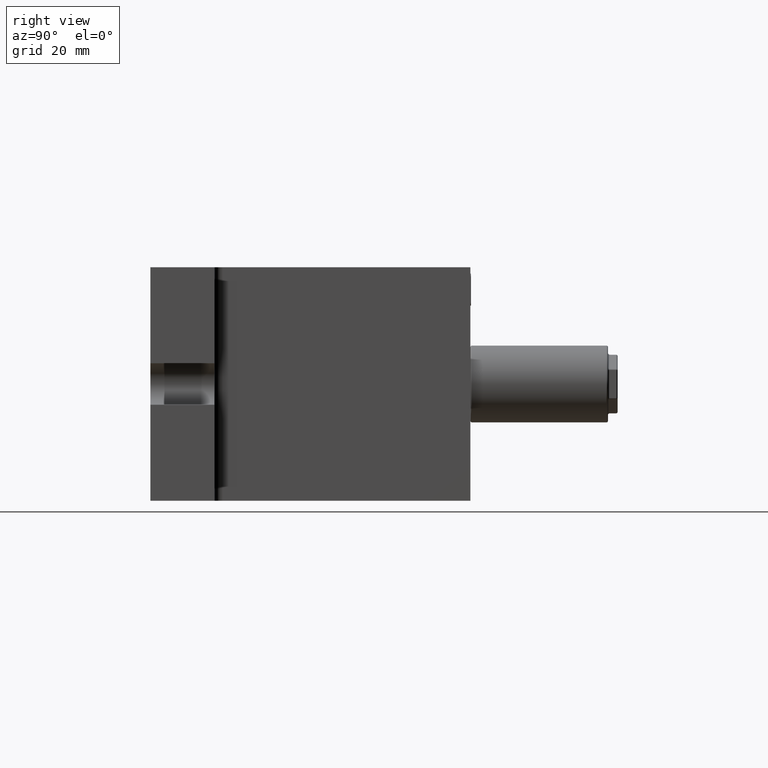
[diagram: clean part render]
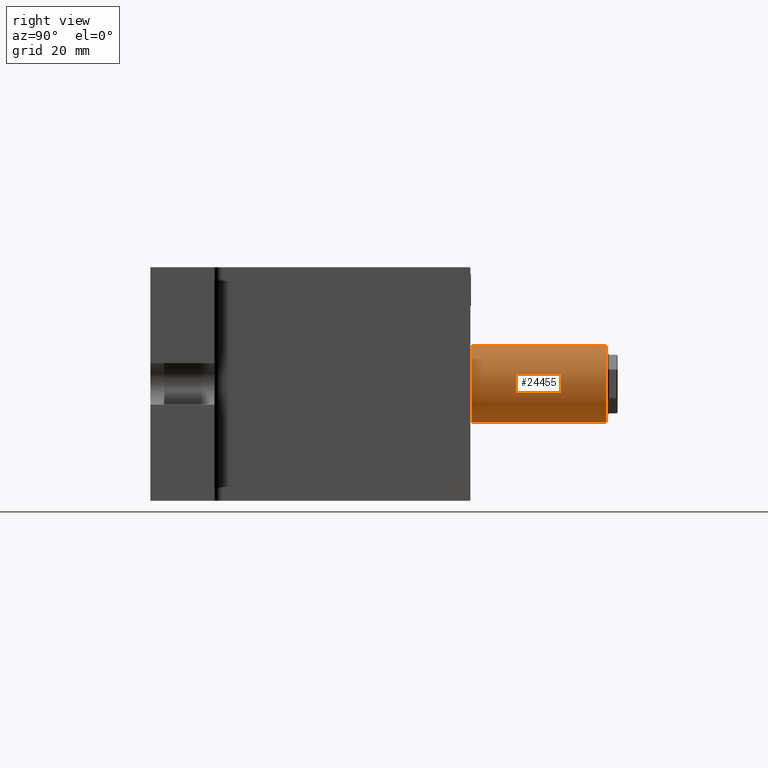
[diagram: same view with one face highlighted and labeled with its STEP entity id]
A machine part, right view. The second image highlights one B-rep face of the part: STEP entity #24455.
In plain terms, the highlighted cylindrical surface (partial cylindrical patch) has radius 12 mm, axis along (0, -1, 0).
Its self-contained STEP definition (entity closure, byte-faithful):
#50 = ORIENTED_EDGE ( 'NONE', *, *, #9661, .T. ) ;
#62 = LINE ( 'NONE', #4436, #14949 ) ;
#83 = DIRECTION ( 'NONE',  ( 0.0000000000000000000, 0.0000000000000000000, 1.000000000000000000 ) ) ;
#1171 = DIRECTION ( 'NONE',  ( -0.0000000000000000000, 1.000000000000000000, -0.0000000000000000000 ) ) ;
#1856 = LINE ( 'NONE', #19194, #5765 ) ;
#2095 = DIRECTION ( 'NONE',  ( 0.0000000000000000000, -1.000000000000000000, 0.0000000000000000000 ) ) ;
#2116 = LINE ( 'NONE', #17479, #9139 ) ;
#2188 = DIRECTION ( 'NONE',  ( 0.0000000000000000000, -1.000000000000000000, 0.0000000000000000000 ) ) ;
#2189 = VERTEX_POINT ( 'NONE', #24588 ) ;
#2353 = EDGE_LOOP ( 'NONE', ( #14680, #6802, #11152, #7181, #13362, #13144, #3193, #4689, #7302, #17540, #4361, #50, #24050, #16234, #4878, #3065, #18163, #11641, #4203, #24303 ) ) ;
#2665 = DIRECTION ( 'NONE',  ( 0.0000000000000000000, 1.000000000000000000, 0.0000000000000000000 ) ) ;
#3065 = ORIENTED_EDGE ( 'NONE', *, *, #16893, .F. ) ;
#3145 = VECTOR ( 'NONE', #8468, 1000.000000000000000 ) ;
#3157 = CARTESIAN_POINT ( 'NONE',  ( 34.00000000000000000, 76.00000000000000000, -12.00000000000000000 ) ) ;
#3193 = ORIENTED_EDGE ( 'NONE', *, *, #17089, .T. ) ;
#3258 = CIRCLE ( 'NONE', #7011, 12.00000000000000000 ) ;
#3421 = CARTESIAN_POINT ( 'NONE',  ( 34.00000000000000000, 93.00000000000000000, 12.00000000000000000 ) ) ;
#3510 = CARTESIAN_POINT ( 'NONE',  ( 34.00000000000000000, 60.00000000000000000, 12.00000000000000000 ) ) ;
#3916 = LINE ( 'NONE', #16996, #11830 ) ;
#3935 = CARTESIAN_POINT ( 'NONE',  ( 34.00000000000000000, 93.00000000000000000, -12.00000000000000000 ) ) ;
#4203 = ORIENTED_EDGE ( 'NONE', *, *, #15593, .F. ) ;
#4329 = EDGE_CURVE ( 'NONE', #17580, #7842, #14251, .T. ) ;
#4361 = ORIENTED_EDGE ( 'NONE', *, *, #4329, .T. ) ;
#4436 = CARTESIAN_POINT ( 'NONE',  ( 34.00000000000000000, 93.00000000000000000, 12.00000000000000000 ) ) ;
#4490 = VECTOR ( 'NONE', #9706, 1000.000000000000000 ) ;
#4586 = CARTESIAN_POINT ( 'NONE',  ( 34.00000000000000000, 66.00000000000000000, 12.00000000000000000 ) ) ;
#4689 = ORIENTED_EDGE ( 'NONE', *, *, #21093, .F. ) ;
#4739 = LINE ( 'NONE', #15799, #18954 ) ;
#4878 = ORIENTED_EDGE ( 'NONE', *, *, #17048, .F. ) ;
#5124 = EDGE_CURVE ( 'NONE', #24989, #6602, #22640, .T. ) ;
#5257 = VECTOR ( 'NONE', #21668, 1000.000000000000000 ) ;
#5303 = LINE ( 'NONE', #5662, #8018 ) ;
#5545 = LINE ( 'NONE', #8359, #7661 ) ;
#5662 = CARTESIAN_POINT ( 'NONE',  ( 34.00000000000000000, 93.00000000000000000, 12.00000000000000000 ) ) ;
#5765 = VECTOR ( 'NONE', #7635, 1000.000000000000000 ) ;
#6344 = CARTESIAN_POINT ( 'NONE',  ( 34.00000000000000000, 74.00000000000000000, 12.00000000000000000 ) ) ;
#6602 = VERTEX_POINT ( 'NONE', #14809 ) ;
#6650 = CARTESIAN_POINT ( 'NONE',  ( 34.00000000000000000, 50.50000000000000000, 0.0000000000000000000 ) ) ;
#6802 = ORIENTED_EDGE ( 'NONE', *, *, #21374, .T. ) ;
#7011 = AXIS2_PLACEMENT_3D ( 'NONE', #6650, #2665, #8877 ) ;
#7181 = ORIENTED_EDGE ( 'NONE', *, *, #17238, .F. ) ;
#7302 = ORIENTED_EDGE ( 'NONE', *, *, #8054, .T. ) ;
#7635 = DIRECTION ( 'NONE',  ( 0.0000000000000000000, -1.000000000000000000, 0.0000000000000000000 ) ) ;
#7661 = VECTOR ( 'NONE', #10426, 1000.000000000000000 ) ;
#7674 = CARTESIAN_POINT ( 'NONE',  ( 34.00000000000000000, 93.00000000000000000, -12.00000000000000000 ) ) ;
#7842 = VERTEX_POINT ( 'NONE', #18639 ) ;
#8018 = VECTOR ( 'NONE', #17157, 1000.000000000000000 ) ;
#8054 = EDGE_CURVE ( 'NONE', #14119, #9438, #13713, .T. ) ;
#8157 = VECTOR ( 'NONE', #8465, 1000.000000000000000 ) ;
#8359 = CARTESIAN_POINT ( 'NONE',  ( 34.00000000000000000, 93.00000000000000000, -12.00000000000000000 ) ) ;
#8465 = DIRECTION ( 'NONE',  ( 0.0000000000000000000, -1.000000000000000000, 0.0000000000000000000 ) ) ;
#8468 = DIRECTION ( 'NONE',  ( -0.0000000000000000000, 1.000000000000000000, -0.0000000000000000000 ) ) ;
#8877 = DIRECTION ( 'NONE',  ( 0.0000000000000000000, 0.0000000000000000000, -1.000000000000000000 ) ) ;
#8880 = VECTOR ( 'NONE', #19376, 1000.000000000000000 ) ;
#9139 = VECTOR ( 'NONE', #24990, 1000.000000000000000 ) ;
#9178 = DIRECTION ( 'NONE',  ( 0.0000000000000000000, -1.000000000000000000, 0.0000000000000000000 ) ) ;
#9272 = CARTESIAN_POINT ( 'NONE',  ( 34.00000000000000000, 66.00000000000000000, -12.00000000000000000 ) ) ;
#9438 = VERTEX_POINT ( 'NONE', #3510 ) ;
#9576 = AXIS2_PLACEMENT_3D ( 'NONE', #11151, #24607, #16924 ) ;
#9661 = EDGE_CURVE ( 'NONE', #7842, #22721, #3258, .T. ) ;
#9706 = DIRECTION ( 'NONE',  ( 0.0000000000000000000, -1.000000000000000000, 0.0000000000000000000 ) ) ;
#10184 = VERTEX_POINT ( 'NONE', #24757 ) ;
#10389 = DIRECTION ( 'NONE',  ( 0.0000000000000000000, -1.000000000000000000, 0.0000000000000000000 ) ) ;
#10426 = DIRECTION ( 'NONE',  ( 0.0000000000000000000, -1.000000000000000000, 0.0000000000000000000 ) ) ;
#10634 = VERTEX_POINT ( 'NONE', #20281 ) ;
#10877 = CARTESIAN_POINT ( 'NONE',  ( 34.00000000000000000, 84.00000000000000000, 12.00000000000000000 ) ) ;
#11151 = CARTESIAN_POINT ( 'NONE',  ( 34.00000000000000000, 92.50000000000000000, 0.0000000000000000000 ) ) ;
#11152 = ORIENTED_EDGE ( 'NONE', *, *, #24685, .T. ) ;
#11222 = CARTESIAN_POINT ( 'NONE',  ( 34.00000000000000000, 76.00000000000000000, 12.00000000000000000 ) ) ;
#11237 = VECTOR ( 'NONE', #1171, 1000.000000000000000 ) ;
#11473 = VECTOR ( 'NONE', #18989, 1000.000000000000000 ) ;
#11641 = ORIENTED_EDGE ( 'NONE', *, *, #16966, .F. ) ;
#11830 = VECTOR ( 'NONE', #9178, 1000.000000000000000 ) ;
#12024 = CARTESIAN_POINT ( 'NONE',  ( 34.00000000000000000, 93.00000000000000000, 12.00000000000000000 ) ) ;
#12240 = DIRECTION ( 'NONE',  ( -0.0000000000000000000, 1.000000000000000000, -0.0000000000000000000 ) ) ;
#12808 = EDGE_CURVE ( 'NONE', #21085, #15006, #62, .T. ) ;
#13118 = LINE ( 'NONE', #3421, #22790 ) ;
#13138 = CIRCLE ( 'NONE', #9576, 12.00000000000000000 ) ;
#13144 = ORIENTED_EDGE ( 'NONE', *, *, #12808, .F. ) ;
#13362 = ORIENTED_EDGE ( 'NONE', *, *, #16294, .T. ) ;
#13595 = CARTESIAN_POINT ( 'NONE',  ( 34.00000000000000000, 93.00000000000000000, 12.00000000000000000 ) ) ;
#13596 = CARTESIAN_POINT ( 'NONE',  ( 34.00000000000000000, 60.00000000000000000, -12.00000000000000000 ) ) ;
#13713 = LINE ( 'NONE', #12024, #24572 ) ;
#14105 = CARTESIAN_POINT ( 'NONE',  ( 34.00000000000000000, 74.00000000000000000, -12.00000000000000000 ) ) ;
#14119 = VERTEX_POINT ( 'NONE', #4586 ) ;
#14171 = VERTEX_POINT ( 'NONE', #14349 ) ;
#14251 = LINE ( 'NONE', #24099, #20554 ) ;
#14302 = EDGE_CURVE ( 'NONE', #10184, #14734, #3916, .T. ) ;
#14349 = CARTESIAN_POINT ( 'NONE',  ( 34.00000000000000000, 68.00000000000000000, 12.00000000000000000 ) ) ;
#14680 = ORIENTED_EDGE ( 'NONE', *, *, #14302, .F. ) ;
#14734 = VERTEX_POINT ( 'NONE', #16448 ) ;
#14809 = CARTESIAN_POINT ( 'NONE',  ( 34.00000000000000000, 68.00000000000000000, -12.00000000000000000 ) ) ;
#14813 = LINE ( 'NONE', #7674, #11473 ) ;
#14949 = VECTOR ( 'NONE', #12240, 1000.000000000000000 ) ;
#15006 = VERTEX_POINT ( 'NONE', #11222 ) ;
#15079 = DIRECTION ( 'NONE',  ( 0.0000000000000000000, -1.000000000000000000, 0.0000000000000000000 ) ) ;
#15108 = CARTESIAN_POINT ( 'NONE',  ( 34.00000000000000000, 82.00000000000000000, -12.00000000000000000 ) ) ;
#15593 = EDGE_CURVE ( 'NONE', #16237, #15677, #4739, .T. ) ;
#15677 = VERTEX_POINT ( 'NONE', #3157 ) ;
#15799 = CARTESIAN_POINT ( 'NONE',  ( 34.00000000000000000, 93.00000000000000000, -12.00000000000000000 ) ) ;
#16234 = ORIENTED_EDGE ( 'NONE', *, *, #19453, .T. ) ;
#16237 = VERTEX_POINT ( 'NONE', #15108 ) ;
#16294 = EDGE_CURVE ( 'NONE', #10634, #15006, #5303, .T. ) ;
#16330 = CARTESIAN_POINT ( 'NONE',  ( 34.00000000000000000, 50.50000000000000000, -12.00000000000000000 ) ) ;
#16448 = CARTESIAN_POINT ( 'NONE',  ( 34.00000000000000000, 84.00000000000000000, -12.00000000000000000 ) ) ;
#16893 = EDGE_CURVE ( 'NONE', #6602, #23300, #19152, .T. ) ;
#16924 = DIRECTION ( 'NONE',  ( 0.0000000000000000000, 0.0000000000000000000, -1.000000000000000000 ) ) ;
#16966 = EDGE_CURVE ( 'NONE', #15677, #24989, #5545, .T. ) ;
#16996 = CARTESIAN_POINT ( 'NONE',  ( 34.00000000000000000, 93.00000000000000000, -12.00000000000000000 ) ) ;
#17045 = CARTESIAN_POINT ( 'NONE',  ( 34.00000000000000000, 93.00000000000000000, -12.00000000000000000 ) ) ;
#17048 = EDGE_CURVE ( 'NONE', #23300, #20330, #18535, .T. ) ;
#17089 = EDGE_CURVE ( 'NONE', #21085, #14171, #13118, .T. ) ;
#17157 = DIRECTION ( 'NONE',  ( 0.0000000000000000000, -1.000000000000000000, 0.0000000000000000000 ) ) ;
#17238 = EDGE_CURVE ( 'NONE', #10634, #23634, #19405, .T. ) ;
#17479 = CARTESIAN_POINT ( 'NONE',  ( 34.00000000000000000, 93.00000000000000000, 12.00000000000000000 ) ) ;
#17540 = ORIENTED_EDGE ( 'NONE', *, *, #19036, .T. ) ;
#17580 = VERTEX_POINT ( 'NONE', #20311 ) ;
#17823 = CARTESIAN_POINT ( 'NONE',  ( 34.00000000000000000, 93.00000000000000000, 12.00000000000000000 ) ) ;
#18163 = ORIENTED_EDGE ( 'NONE', *, *, #5124, .F. ) ;
#18416 = EDGE_CURVE ( 'NONE', #2189, #22721, #1856, .T. ) ;
#18535 = LINE ( 'NONE', #17045, #20948 ) ;
#18639 = CARTESIAN_POINT ( 'NONE',  ( 34.00000000000000000, 50.50000000000000000, 12.00000000000000000 ) ) ;
#18954 = VECTOR ( 'NONE', #19635, 1000.000000000000000 ) ;
#18989 = DIRECTION ( 'NONE',  ( 0.0000000000000000000, -1.000000000000000000, 0.0000000000000000000 ) ) ;
#19036 = EDGE_CURVE ( 'NONE', #9438, #17580, #2116, .T. ) ;
#19152 = LINE ( 'NONE', #3935, #5257 ) ;
#19194 = CARTESIAN_POINT ( 'NONE',  ( 34.00000000000000000, 93.00000000000000000, -12.00000000000000000 ) ) ;
#19376 = DIRECTION ( 'NONE',  ( -0.0000000000000000000, 1.000000000000000000, -0.0000000000000000000 ) ) ;
#19405 = LINE ( 'NONE', #13595, #8880 ) ;
#19453 = EDGE_CURVE ( 'NONE', #2189, #20330, #25065, .T. ) ;
#19635 = DIRECTION ( 'NONE',  ( 0.0000000000000000000, -1.000000000000000000, 0.0000000000000000000 ) ) ;
#20009 = CARTESIAN_POINT ( 'NONE',  ( 34.00000000000000000, 93.00000000000000000, 12.00000000000000000 ) ) ;
#20244 = EDGE_CURVE ( 'NONE', #14734, #16237, #14813, .T. ) ;
#20281 = CARTESIAN_POINT ( 'NONE',  ( 34.00000000000000000, 82.00000000000000000, 12.00000000000000000 ) ) ;
#20311 = CARTESIAN_POINT ( 'NONE',  ( 34.00000000000000000, 58.00000000000000000, 12.00000000000000000 ) ) ;
#20312 = CYLINDRICAL_SURFACE ( 'NONE', #21206, 12.00000000000000000 ) ;
#20330 = VERTEX_POINT ( 'NONE', #13596 ) ;
#20554 = VECTOR ( 'NONE', #10389, 1000.000000000000000 ) ;
#20948 = VECTOR ( 'NONE', #24132, 1000.000000000000000 ) ;
#21085 = VERTEX_POINT ( 'NONE', #6344 ) ;
#21093 = EDGE_CURVE ( 'NONE', #14119, #14171, #24917, .T. ) ;
#21203 = FACE_OUTER_BOUND ( 'NONE', #2353, .T. ) ;
#21206 = AXIS2_PLACEMENT_3D ( 'NONE', #23318, #2095, #83 ) ;
#21237 = CARTESIAN_POINT ( 'NONE',  ( 34.00000000000000000, 93.00000000000000000, -12.00000000000000000 ) ) ;
#21258 = VERTEX_POINT ( 'NONE', #24191 ) ;
#21374 = EDGE_CURVE ( 'NONE', #10184, #21258, #13138, .T. ) ;
#21668 = DIRECTION ( 'NONE',  ( 0.0000000000000000000, -1.000000000000000000, 0.0000000000000000000 ) ) ;
#22371 = LINE ( 'NONE', #20009, #8157 ) ;
#22379 = CARTESIAN_POINT ( 'NONE',  ( 34.00000000000000000, 93.00000000000000000, -12.00000000000000000 ) ) ;
#22640 = LINE ( 'NONE', #21237, #4490 ) ;
#22721 = VERTEX_POINT ( 'NONE', #16330 ) ;
#22790 = VECTOR ( 'NONE', #15079, 1000.000000000000000 ) ;
#23300 = VERTEX_POINT ( 'NONE', #9272 ) ;
#23318 = CARTESIAN_POINT ( 'NONE',  ( 34.00000000000000000, 93.00000000000000000, 0.0000000000000000000 ) ) ;
#23634 = VERTEX_POINT ( 'NONE', #10877 ) ;
#24050 = ORIENTED_EDGE ( 'NONE', *, *, #18416, .F. ) ;
#24099 = CARTESIAN_POINT ( 'NONE',  ( 34.00000000000000000, 93.00000000000000000, 12.00000000000000000 ) ) ;
#24132 = DIRECTION ( 'NONE',  ( 0.0000000000000000000, -1.000000000000000000, 0.0000000000000000000 ) ) ;
#24191 = CARTESIAN_POINT ( 'NONE',  ( 34.00000000000000000, 92.50000000000000000, 12.00000000000000000 ) ) ;
#24303 = ORIENTED_EDGE ( 'NONE', *, *, #20244, .F. ) ;
#24455 = ADVANCED_FACE ( 'NONE', ( #21203 ), #20312, .T. ) ;
#24572 = VECTOR ( 'NONE', #2188, 1000.000000000000000 ) ;
#24588 = CARTESIAN_POINT ( 'NONE',  ( 34.00000000000000000, 58.00000000000000000, -12.00000000000000000 ) ) ;
#24607 = DIRECTION ( 'NONE',  ( -0.0000000000000000000, -1.000000000000000000, -0.0000000000000000000 ) ) ;
#24685 = EDGE_CURVE ( 'NONE', #21258, #23634, #22371, .T. ) ;
#24757 = CARTESIAN_POINT ( 'NONE',  ( 34.00000000000000000, 92.50000000000000000, -12.00000000000000000 ) ) ;
#24917 = LINE ( 'NONE', #17823, #3145 ) ;
#24989 = VERTEX_POINT ( 'NONE', #14105 ) ;
#24990 = DIRECTION ( 'NONE',  ( 0.0000000000000000000, -1.000000000000000000, 0.0000000000000000000 ) ) ;
#25065 = LINE ( 'NONE', #22379, #11237 ) ;